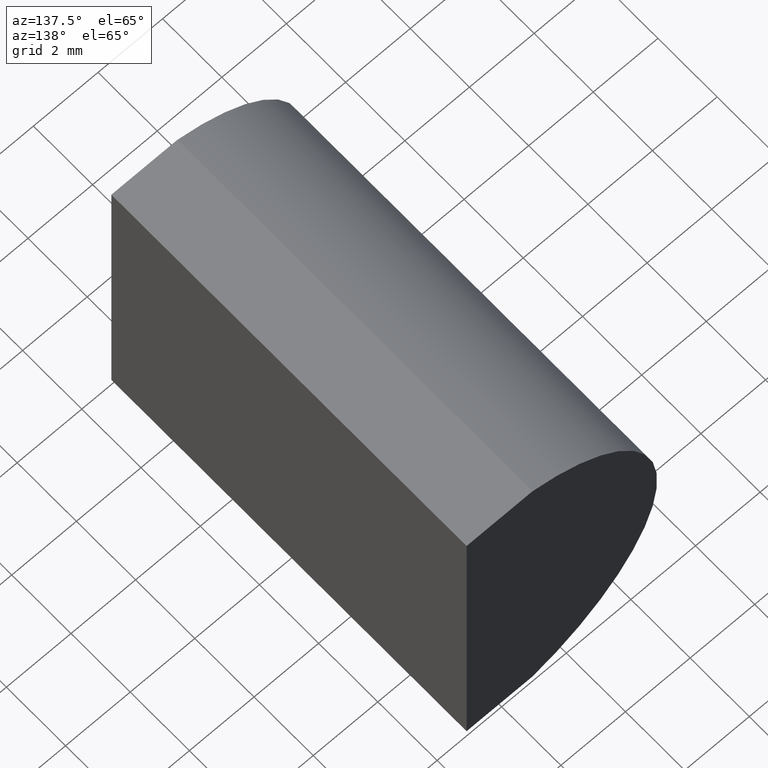
[diagram: clean part render]
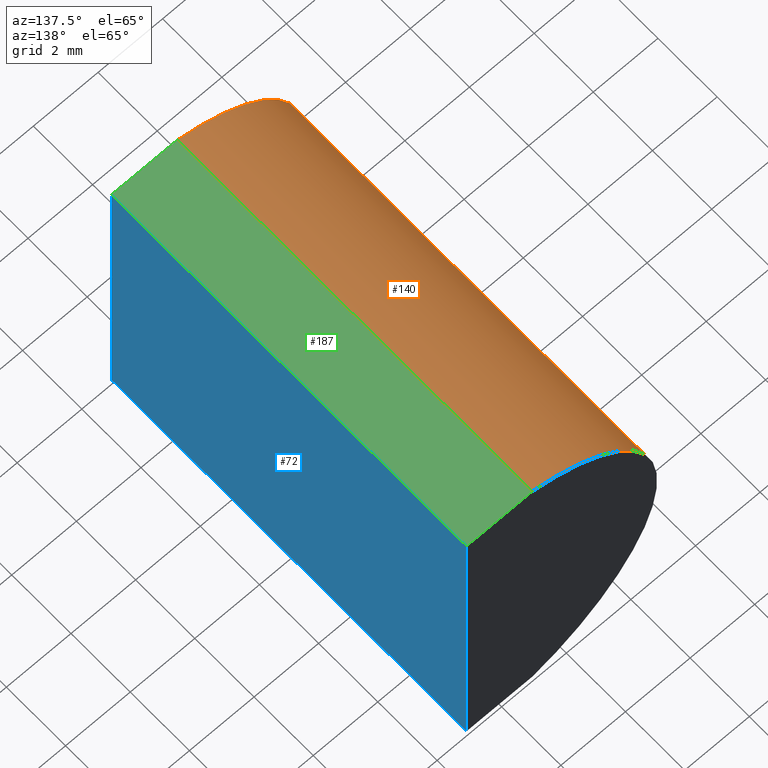
[diagram: same view with three faces highlighted in distinct colors, each labeled with its STEP entity id]
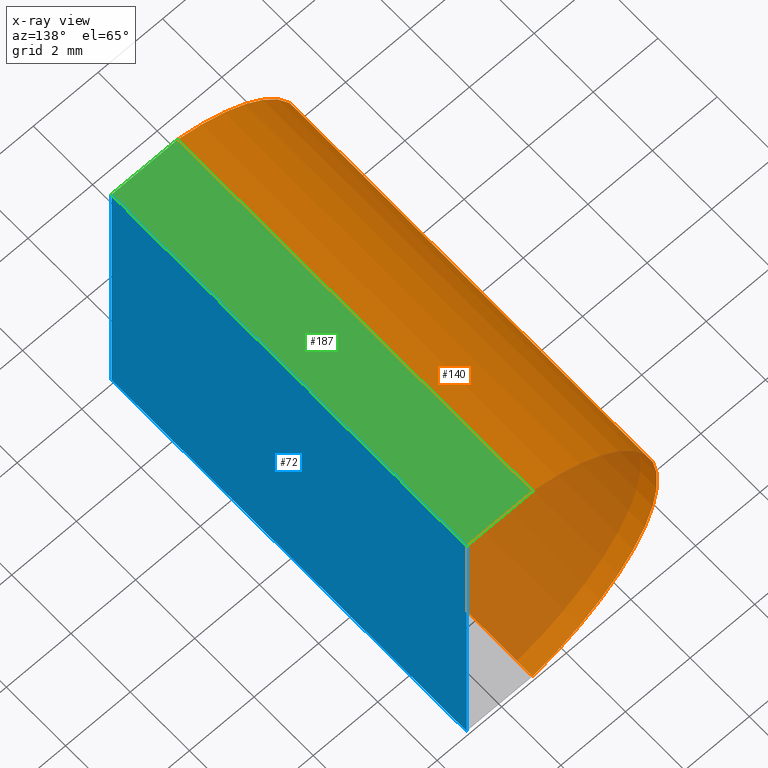
[diagram: x-ray of the same camera — body ghosted, the three highlighted faces saturated]
A machine part, auxiliary view with three faces highlighted in distinct colors.
The next image is the same camera in x-ray (body ghosted, the three faces saturated) — at least one of them is partly hidden behind the body in this view.
Their STEP definitions:

[orange] entity #140 — the highlighted cylindrical surface (partial cylindrical patch) has radius 5.17 mm, axis along (-0, -1, -0).
#5 = EDGE_CURVE ( 'NONE', #199, #42, #48, .T. ) ;
#11 = CIRCLE ( 'NONE', #96, 5.169999999999999000 ) ;
#15 = DIRECTION ( 'NONE',  ( -0.0000000000000000000, -1.000000000000000000, -0.0000000000000000000 ) ) ;
#26 = CARTESIAN_POINT ( 'NONE',  ( 4.355204334851265500, 0.0000000000000000000, 4.286263797015675000E-017 ) ) ;
#34 = CARTESIAN_POINT ( 'NONE',  ( 3.040327914802600800, 0.0000000000000000000, -5.000000000000000000 ) ) ;
#36 = CARTESIAN_POINT ( 'NONE',  ( 3.040327914802600800, 12.00000000000000000, -5.000000000000000000 ) ) ;
#38 = DIRECTION ( 'NONE',  ( 0.0000000000000000000, 0.0000000000000000000, -1.000000000000000000 ) ) ;
#39 = LINE ( 'NONE', #36, #144 ) ;
#40 = CARTESIAN_POINT ( 'NONE',  ( 4.355204334851265500, 12.00000000000000000, 4.286263797015675000E-017 ) ) ;
#41 = DIRECTION ( 'NONE',  ( 0.0000000000000000000, 1.000000000000000000, 0.0000000000000000000 ) ) ;
#42 = VERTEX_POINT ( 'NONE', #169 ) ;
#44 = AXIS2_PLACEMENT_3D ( 'NONE', #40, #201, #38 ) ;
#48 = LINE ( 'NONE', #189, #132 ) ;
#49 = DIRECTION ( 'NONE',  ( -0.0000000000000000000, -1.000000000000000000, -0.0000000000000000000 ) ) ;
#66 = ORIENTED_EDGE ( 'NONE', *, *, #165, .T. ) ;
#75 = EDGE_CURVE ( 'NONE', #93, #199, #11, .T. ) ;
#86 = CIRCLE ( 'NONE', #99, 5.169999999999999000 ) ;
#93 = VERTEX_POINT ( 'NONE', #159 ) ;
#94 = ORIENTED_EDGE ( 'NONE', *, *, #75, .F. ) ;
#96 = AXIS2_PLACEMENT_3D ( 'NONE', #109, #103, #102 ) ;
#99 = AXIS2_PLACEMENT_3D ( 'NONE', #26, #41, #143 ) ;
#102 = DIRECTION ( 'NONE',  ( 0.0000000000000000000, 0.0000000000000000000, 1.000000000000000000 ) ) ;
#103 = DIRECTION ( 'NONE',  ( 0.0000000000000000000, 1.000000000000000000, 0.0000000000000000000 ) ) ;
#109 = CARTESIAN_POINT ( 'NONE',  ( 4.355204334851265500, 12.00000000000000000, 4.286263797015675000E-017 ) ) ;
#114 = ORIENTED_EDGE ( 'NONE', *, *, #137, .T. ) ;
#115 = FACE_OUTER_BOUND ( 'NONE', #193, .T. ) ;
#121 = ORIENTED_EDGE ( 'NONE', *, *, #5, .F. ) ;
#132 = VECTOR ( 'NONE', #15, 1000.000000000000000 ) ;
#136 = VERTEX_POINT ( 'NONE', #34 ) ;
#137 = EDGE_CURVE ( 'NONE', #93, #136, #39, .T. ) ;
#140 = ADVANCED_FACE ( 'NONE', ( #115 ), #185, .T. ) ;
#143 = DIRECTION ( 'NONE',  ( 0.0000000000000000000, 0.0000000000000000000, 1.000000000000000000 ) ) ;
#144 = VECTOR ( 'NONE', #49, 1000.000000000000000 ) ;
#159 = CARTESIAN_POINT ( 'NONE',  ( 3.040327914802600800, 12.00000000000000000, -5.000000000000000000 ) ) ;
#165 = EDGE_CURVE ( 'NONE', #136, #42, #86, .T. ) ;
#169 = CARTESIAN_POINT ( 'NONE',  ( 3.040327914802600300, 0.0000000000000000000, 5.000000000000000000 ) ) ;
#185 = CYLINDRICAL_SURFACE ( 'NONE', #44, 5.169999999999999000 ) ;
#189 = CARTESIAN_POINT ( 'NONE',  ( 3.040327914802600300, 12.00000000000000000, 5.000000000000000000 ) ) ;
#193 = EDGE_LOOP ( 'NONE', ( #66, #121, #94, #114 ) ) ;
#194 = CARTESIAN_POINT ( 'NONE',  ( 3.040327914802600300, 12.00000000000000000, 5.000000000000000000 ) ) ;
#199 = VERTEX_POINT ( 'NONE', #194 ) ;
#201 = DIRECTION ( 'NONE',  ( -0.0000000000000000000, -1.000000000000000000, -0.0000000000000000000 ) ) ;

[blue] entity #72 — the highlighted planar face has unit normal (-1, 0, 0).
#21 = DIRECTION ( 'NONE',  ( -0.0000000000000000000, -1.000000000000000000, -0.0000000000000000000 ) ) ;
#28 = LINE ( 'NONE', #71, #160 ) ;
#35 = FACE_OUTER_BOUND ( 'NONE', #188, .T. ) ;
#37 = VERTEX_POINT ( 'NONE', #164 ) ;
#52 = DIRECTION ( 'NONE',  ( -0.0000000000000000000, -1.000000000000000000, -0.0000000000000000000 ) ) ;
#53 = VERTEX_POINT ( 'NONE', #87 ) ;
#55 = CARTESIAN_POINT ( 'NONE',  ( 5.085204334851267700, 12.00000000000000000, 5.000000000000000000 ) ) ;
#69 = ORIENTED_EDGE ( 'NONE', *, *, #154, .T. ) ;
#71 = CARTESIAN_POINT ( 'NONE',  ( 5.085204334851264100, 0.0000000000000000000, -5.000000000000001800 ) ) ;
#72 = ADVANCED_FACE ( 'NONE', ( #35 ), #171, .F. ) ;
#73 = CARTESIAN_POINT ( 'NONE',  ( 5.085204334851267700, 12.00000000000000000, 5.000000000000000000 ) ) ;
#84 = DIRECTION ( 'NONE',  ( -3.469446951953613700E-016, -0.0000000000000000000, -1.000000000000000000 ) ) ;
#87 = CARTESIAN_POINT ( 'NONE',  ( 5.085204334851264100, 0.0000000000000000000, -5.000000000000001800 ) ) ;
#92 = DIRECTION ( 'NONE',  ( -3.469446951953613700E-016, -0.0000000000000000000, -1.000000000000000000 ) ) ;
#95 = VECTOR ( 'NONE', #92, 1000.000000000000000 ) ;
#104 = LINE ( 'NONE', #55, #196 ) ;
#113 = AXIS2_PLACEMENT_3D ( 'NONE', #184, #186, #173 ) ;
#116 = EDGE_CURVE ( 'NONE', #197, #53, #28, .T. ) ;
#120 = LINE ( 'NONE', #204, #172 ) ;
#123 = LINE ( 'NONE', #195, #95 ) ;
#130 = EDGE_CURVE ( 'NONE', #37, #53, #120, .T. ) ;
#151 = ORIENTED_EDGE ( 'NONE', *, *, #130, .F. ) ;
#154 = EDGE_CURVE ( 'NONE', #203, #197, #104, .T. ) ;
#158 = EDGE_CURVE ( 'NONE', #203, #37, #123, .T. ) ;
#160 = VECTOR ( 'NONE', #84, 1000.000000000000000 ) ;
#164 = CARTESIAN_POINT ( 'NONE',  ( 5.085204334851264100, 12.00000000000000000, -5.000000000000001800 ) ) ;
#167 = ORIENTED_EDGE ( 'NONE', *, *, #116, .T. ) ;
#171 = PLANE ( 'NONE',  #113 ) ;
#172 = VECTOR ( 'NONE', #21, 1000.000000000000000 ) ;
#173 = DIRECTION ( 'NONE',  ( 3.469446951953613700E-016, 0.0000000000000000000, 1.000000000000000000 ) ) ;
#179 = CARTESIAN_POINT ( 'NONE',  ( 5.085204334851267700, 0.0000000000000000000, 5.000000000000000000 ) ) ;
#181 = ORIENTED_EDGE ( 'NONE', *, *, #158, .F. ) ;
#184 = CARTESIAN_POINT ( 'NONE',  ( 5.085204334851264100, 12.00000000000000000, -5.000000000000001800 ) ) ;
#186 = DIRECTION ( 'NONE',  ( -1.000000000000000000, 0.0000000000000000000, 3.469446951953613700E-016 ) ) ;
#188 = EDGE_LOOP ( 'NONE', ( #167, #151, #181, #69 ) ) ;
#195 = CARTESIAN_POINT ( 'NONE',  ( 5.085204334851264100, 12.00000000000000000, -5.000000000000001800 ) ) ;
#196 = VECTOR ( 'NONE', #52, 1000.000000000000000 ) ;
#197 = VERTEX_POINT ( 'NONE', #179 ) ;
#203 = VERTEX_POINT ( 'NONE', #73 ) ;
#204 = CARTESIAN_POINT ( 'NONE',  ( 5.085204334851264100, 12.00000000000000000, -5.000000000000001800 ) ) ;

[green] entity #187 — the highlighted planar face has unit normal (0, 0, -1).
#5 = EDGE_CURVE ( 'NONE', #199, #42, #48, .T. ) ;
#7 = PLANE ( 'NONE',  #161 ) ;
#15 = DIRECTION ( 'NONE',  ( -0.0000000000000000000, -1.000000000000000000, -0.0000000000000000000 ) ) ;
#20 = DIRECTION ( 'NONE',  ( 1.000000000000000000, 0.0000000000000000000, 0.0000000000000000000 ) ) ;
#42 = VERTEX_POINT ( 'NONE', #169 ) ;
#48 = LINE ( 'NONE', #189, #132 ) ;
#50 = CARTESIAN_POINT ( 'NONE',  ( 3.040327914802600300, 12.00000000000000000, 5.000000000000000000 ) ) ;
#51 = DIRECTION ( 'NONE',  ( 1.000000000000000000, 0.0000000000000000000, 0.0000000000000000000 ) ) ;
#52 = DIRECTION ( 'NONE',  ( -0.0000000000000000000, -1.000000000000000000, -0.0000000000000000000 ) ) ;
#55 = CARTESIAN_POINT ( 'NONE',  ( 5.085204334851267700, 12.00000000000000000, 5.000000000000000000 ) ) ;
#60 = EDGE_LOOP ( 'NONE', ( #138, #79, #170, #108 ) ) ;
#73 = CARTESIAN_POINT ( 'NONE',  ( 5.085204334851267700, 12.00000000000000000, 5.000000000000000000 ) ) ;
#78 = VECTOR ( 'NONE', #20, 1000.000000000000000 ) ;
#79 = ORIENTED_EDGE ( 'NONE', *, *, #154, .F. ) ;
#81 = VECTOR ( 'NONE', #51, 1000.000000000000000 ) ;
#91 = DIRECTION ( 'NONE',  ( 0.0000000000000000000, 0.0000000000000000000, -1.000000000000000000 ) ) ;
#97 = CARTESIAN_POINT ( 'NONE',  ( 3.040327914802600300, 0.0000000000000000000, 5.000000000000000000 ) ) ;
#104 = LINE ( 'NONE', #55, #196 ) ;
#108 = ORIENTED_EDGE ( 'NONE', *, *, #5, .T. ) ;
#110 = CARTESIAN_POINT ( 'NONE',  ( 3.040327914802600300, 12.00000000000000000, 5.000000000000000000 ) ) ;
#132 = VECTOR ( 'NONE', #15, 1000.000000000000000 ) ;
#134 = EDGE_CURVE ( 'NONE', #42, #197, #190, .T. ) ;
#138 = ORIENTED_EDGE ( 'NONE', *, *, #134, .T. ) ;
#139 = FACE_OUTER_BOUND ( 'NONE', #60, .T. ) ;
#146 = EDGE_CURVE ( 'NONE', #199, #203, #152, .T. ) ;
#152 = LINE ( 'NONE', #50, #81 ) ;
#154 = EDGE_CURVE ( 'NONE', #203, #197, #104, .T. ) ;
#161 = AXIS2_PLACEMENT_3D ( 'NONE', #110, #91, #178 ) ;
#169 = CARTESIAN_POINT ( 'NONE',  ( 3.040327914802600300, 0.0000000000000000000, 5.000000000000000000 ) ) ;
#170 = ORIENTED_EDGE ( 'NONE', *, *, #146, .F. ) ;
#178 = DIRECTION ( 'NONE',  ( -1.000000000000000000, 0.0000000000000000000, -0.0000000000000000000 ) ) ;
#179 = CARTESIAN_POINT ( 'NONE',  ( 5.085204334851267700, 0.0000000000000000000, 5.000000000000000000 ) ) ;
#187 = ADVANCED_FACE ( 'NONE', ( #139 ), #7, .F. ) ;
#189 = CARTESIAN_POINT ( 'NONE',  ( 3.040327914802600300, 12.00000000000000000, 5.000000000000000000 ) ) ;
#190 = LINE ( 'NONE', #97, #78 ) ;
#194 = CARTESIAN_POINT ( 'NONE',  ( 3.040327914802600300, 12.00000000000000000, 5.000000000000000000 ) ) ;
#196 = VECTOR ( 'NONE', #52, 1000.000000000000000 ) ;
#197 = VERTEX_POINT ( 'NONE', #179 ) ;
#199 = VERTEX_POINT ( 'NONE', #194 ) ;
#203 = VERTEX_POINT ( 'NONE', #73 ) ;